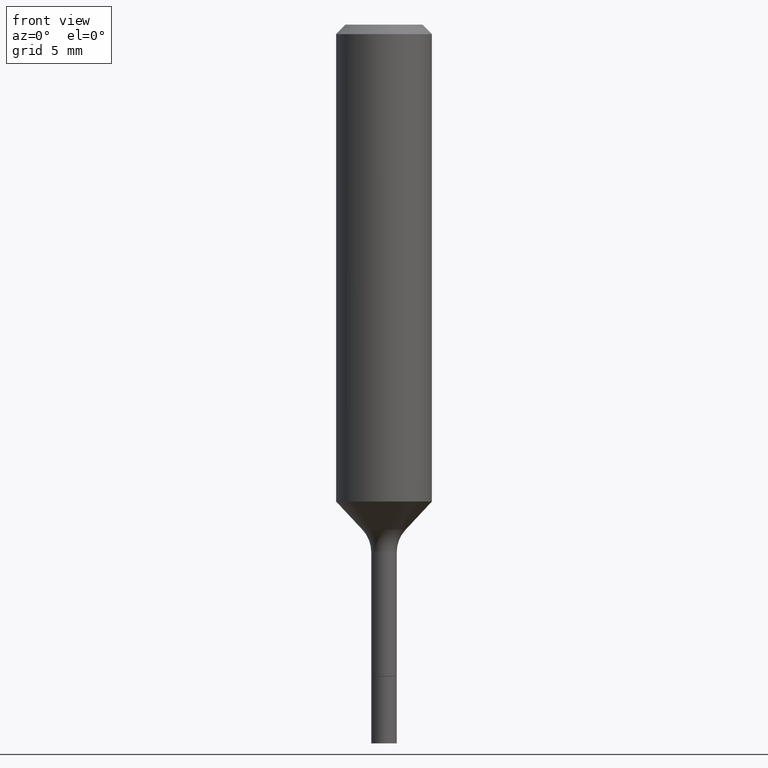
[diagram: clean part render]
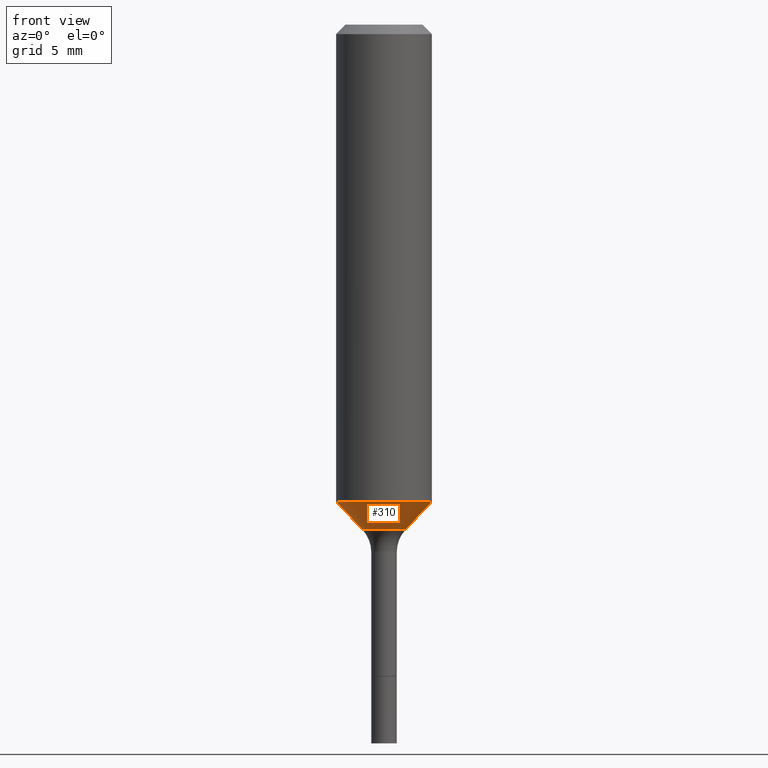
[diagram: same view with one face highlighted and labeled with its STEP entity id]
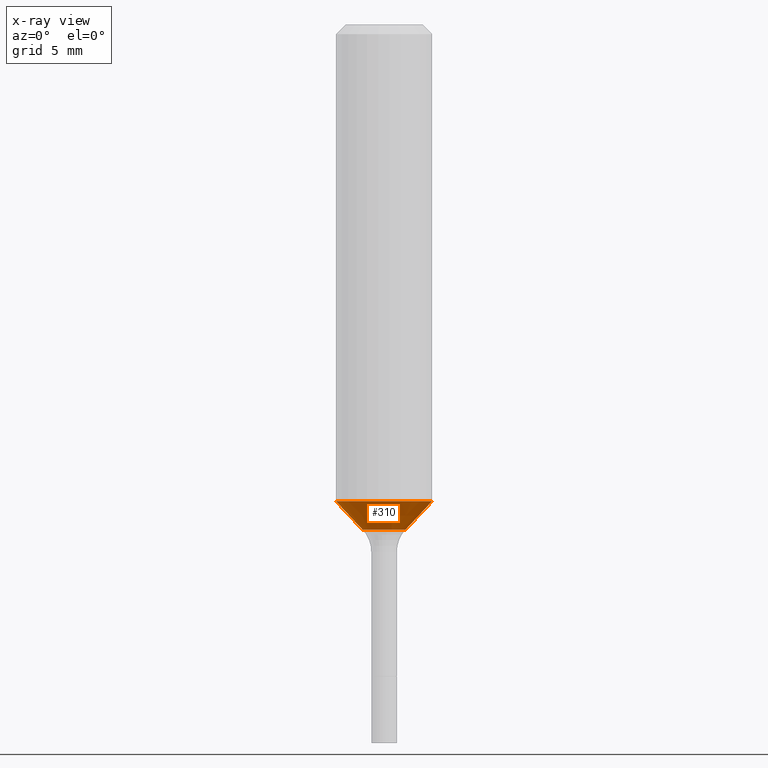
[diagram: x-ray of the same camera — body ghosted, the highlighted face saturated]
A machine part, front view. The second image highlights one B-rep face of the part: STEP entity #310.
The next image is the same camera in x-ray: the body ghosted, the highlighted face saturated — about 0% of this face is hidden behind the body in this view.
In plain terms, the highlighted conical surface has half-angle 43 deg.
Its self-contained STEP definition (entity closure, byte-faithful):
#3 = DIRECTION ( 'NONE',  ( -2.445468806185136597E-29, 3.491481338843145583E-15, 1.000000000000000000 ) ) ;
#40 = VECTOR ( 'NONE', #501, 39.37007874015748854 ) ;
#60 = CARTESIAN_POINT ( 'NONE',  ( 0.05299170387046631819, -4.717422622666518249E-15, -1.245140131195000333 ) ) ;
#61 = VECTOR ( 'NONE', #402, 39.37007874015748854 ) ;
#66 = ORIENTED_EDGE ( 'NONE', *, *, #303, .T. ) ;
#67 = CARTESIAN_POINT ( 'NONE',  ( -0.05299170387046632513, -3.970854829904946346E-15, -1.245140131195000333 ) ) ;
#72 = AXIS2_PLACEMENT_3D ( 'NONE', #400, #195, #233 ) ;
#83 = ORIENTED_EDGE ( 'NONE', *, *, #482, .T. ) ;
#90 = CARTESIAN_POINT ( 'NONE',  ( -0.1181000000000001354, -3.264456986786058347E-15, -1.175320031662667297 ) ) ;
#103 = VERTEX_POINT ( 'NONE', #490 ) ;
#123 = CARTESIAN_POINT ( 'NONE',  ( 0.1181000000000001354, -4.928295849953486385E-15, -1.175320031662667297 ) ) ;
#137 = AXIS2_PLACEMENT_3D ( 'NONE', #252, #393, #157 ) ;
#157 = DIRECTION ( 'NONE',  ( 1.000000000000000000, -6.982962677686261189E-15, 0.000000000000000000 ) ) ;
#195 = DIRECTION ( 'NONE',  ( -2.445468806185136597E-29, 3.491481338843145583E-15, 1.000000000000000000 ) ) ;
#198 = CARTESIAN_POINT ( 'NONE',  ( -0.05299170387046631819, -3.970854829904947135E-15, -1.245140131195000333 ) ) ;
#210 = FACE_OUTER_BOUND ( 'NONE', #304, .T. ) ;
#218 = EDGE_CURVE ( 'NONE', #510, #361, #391, .T. ) ;
#233 = DIRECTION ( 'NONE',  ( 1.000000000000000000, -6.982962677686269077E-15, 0.000000000000000000 ) ) ;
#252 = CARTESIAN_POINT ( 'NONE',  ( 3.044951350166641227E-29, -4.347383532312049754E-15, -1.245140131195000333 ) ) ;
#290 = LINE ( 'NONE', #60, #40 ) ;
#298 = CIRCLE ( 'NONE', #72, 0.1181000000000001354 ) ;
#303 = EDGE_CURVE ( 'NONE', #510, #103, #356, .T. ) ;
#304 = EDGE_LOOP ( 'NONE', ( #366, #66, #83, #495 ) ) ;
#310 = ADVANCED_FACE ( 'NONE', ( #210 ), #493, .T. ) ;
#334 = CARTESIAN_POINT ( 'NONE',  ( 3.044951350166641227E-29, -4.347383532312049754E-15, -1.245140131195000333 ) ) ;
#352 = AXIS2_PLACEMENT_3D ( 'NONE', #334, #3, #437 ) ;
#356 = CIRCLE ( 'NONE', #137, 0.05299170387046631819 ) ;
#361 = VERTEX_POINT ( 'NONE', #90 ) ;
#366 = ORIENTED_EDGE ( 'NONE', *, *, #218, .F. ) ;
#371 = VERTEX_POINT ( 'NONE', #123 ) ;
#391 = LINE ( 'NONE', #198, #61 ) ;
#393 = DIRECTION ( 'NONE',  ( -2.445468806185136597E-29, 3.491481338843145583E-15, 1.000000000000000000 ) ) ;
#400 = CARTESIAN_POINT ( 'NONE',  ( 2.874208474715579591E-29, -4.103607957718737333E-15, -1.175320031662667297 ) ) ;
#402 = DIRECTION ( 'NONE',  ( -0.6819983600624995868, 7.399397606724291309E-15, 0.7313537016191693496 ) ) ;
#412 = EDGE_CURVE ( 'NONE', #361, #371, #298, .T. ) ;
#437 = DIRECTION ( 'NONE',  ( 1.000000000000000000, -6.982962677686261189E-15, 0.000000000000000000 ) ) ;
#482 = EDGE_CURVE ( 'NONE', #103, #371, #290, .T. ) ;
#490 = CARTESIAN_POINT ( 'NONE',  ( 0.05299170387046632513, -4.717422622666518249E-15, -1.245140131195000333 ) ) ;
#493 = CONICAL_SURFACE ( 'NONE', #352, 0.05299170387046631819, 0.7504915783575633048 ) ;
#495 = ORIENTED_EDGE ( 'NONE', *, *, #412, .F. ) ;
#501 = DIRECTION ( 'NONE',  ( 0.6819983600624995868, -2.208861293262486847E-15, 0.7313537016191693496 ) ) ;
#510 = VERTEX_POINT ( 'NONE', #67 ) ;